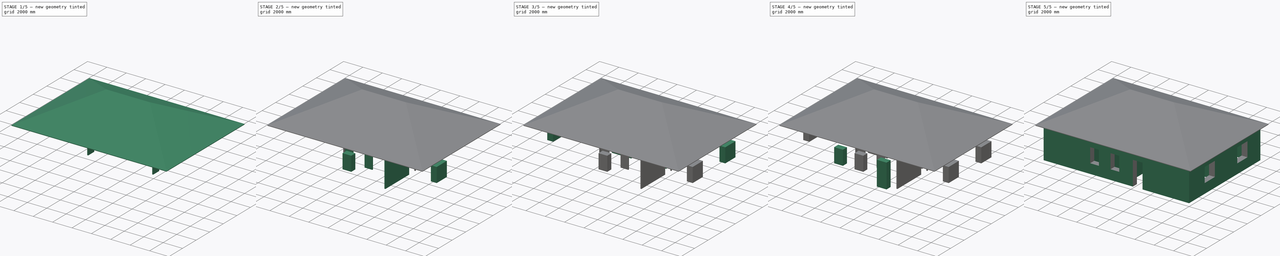
[diagram: build sequence overview — one tinted view per stage of 5, left to right]
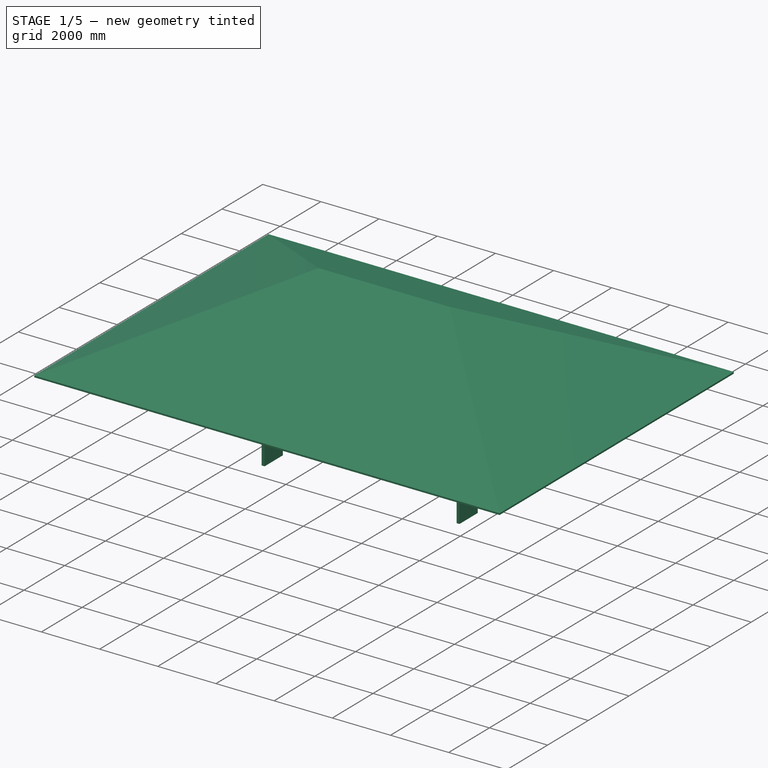
[diagram: stage 1 of 5 — iso view after this stage's code; geometry added in this stage tinted green]
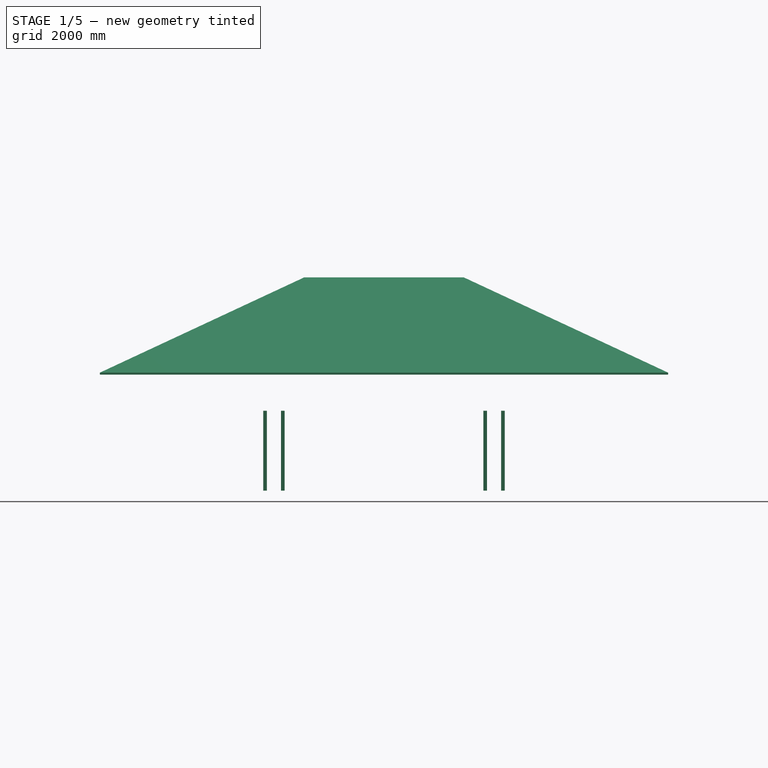
[diagram: stage 1 of 5 — front view after this stage's code; geometry added in this stage tinted green]
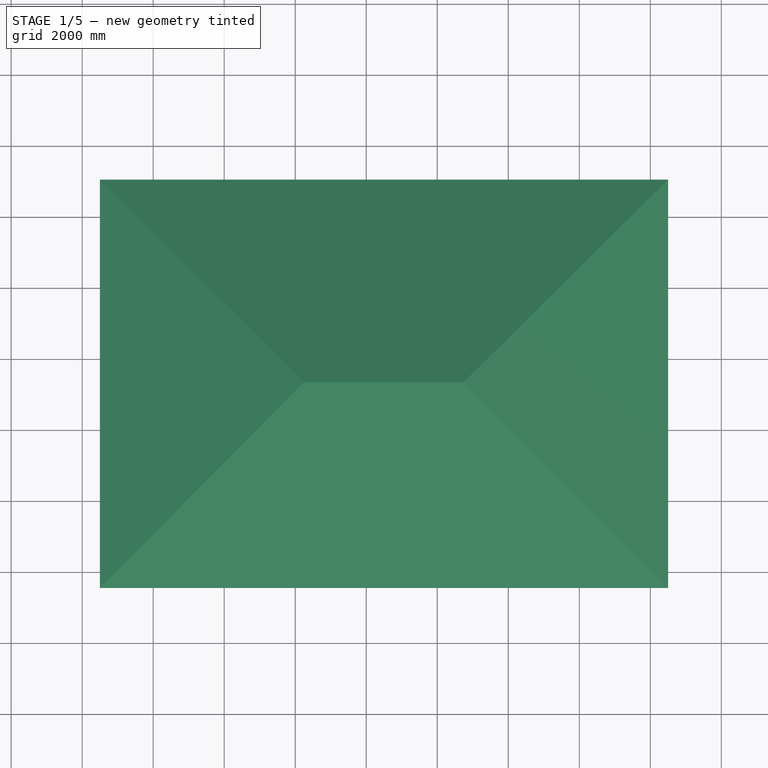
[diagram: stage 1 of 5 — top view after this stage's code; geometry added in this stage tinted green]
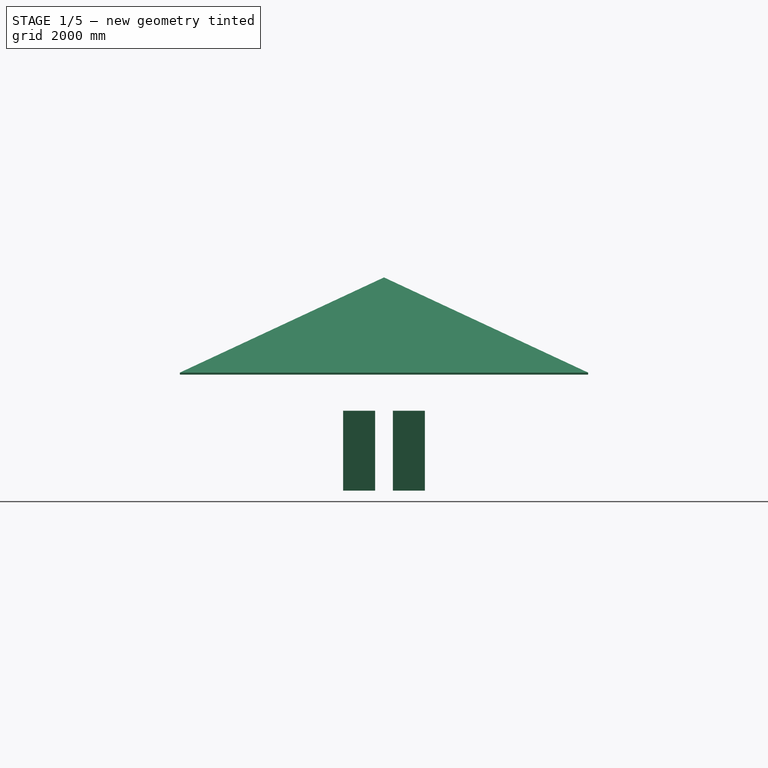
[diagram: stage 1 of 5 — right view after this stage's code; geometry added in this stage tinted green]
FCSTD DOCUMENT  (FreeCAD 0.18.4R)
Label: 3d_for_doctor77
License: All rights reserved
LicenseURL: http://en.wikipedia.org/wiki/All_rights_reserved
objects: Part::Part2DObjectPython×33, Part::FeaturePython×25, App::GeometryPython×3, App::DocumentObjectGroup×1, Sketcher::SketchObject×1, Part::Extrusion×1
note: 63 computed .brp shape members not serialized (recipe doc carries the construction recipe); baked Part::Feature solids carry a one-line shape summary decoded from their .brp

FEATURE [Part::Part2DObjectPython] Rectangle975  label="проём_075"  # Draft 2D object (typed FeaturePython)
  ChamferSize = 0
  Columns = 1
  FilletRadius = 0
  Height = 100
  Length = 900
  MakeFace = true
  Placement = pos=(-4900,1000,0) rot=(0,0,-1;1.5708rad)
  Rows = 1
FEATURE [Part::FeaturePython] Structure586  label="проём двери вн. 007"  # Arch/BIM object (typed FeaturePython)
  Base = -> Rectangle975
  FaceMaker = 0
  Height = 2250
  HorizontalArea = 90000
  IfcRole = 0
  Length = 0
  MoveWithHost = false
  Nodes = (2) [(-4225,7937.5,0),(-4225,7937.5,2250)]
  NodesOffset = 0
  Normal = (0,0,0)
  PerimeterLength = 2000
  VerticalArea = 4500000
  Width = 100
FEATURE [Part::Part2DObjectPython] Rectangle976  label="проём_076"  # Draft 2D object (typed FeaturePython)
  ChamferSize = 0
  Columns = 1
  FilletRadius = 0
  Height = 100
  Length = 900
  MakeFace = true
  Placement = pos=(-4400,2400,0) rot=(0,0,-1;1.5708rad)
  Rows = 1
FEATURE [Part::FeaturePython] Structure587  label="проём двери вн. 008"  # Arch/BIM object (typed FeaturePython)
  Base = -> Rectangle976
  FaceMaker = 0
  Height = 2250
  HorizontalArea = 90000
  IfcRole = 0
  Length = 0
  MoveWithHost = false
  Nodes = (2) [(-4225,7937.5,0),(-4225,7937.5,2250)]
  NodesOffset = 0
  Normal = (0,0,0)
  PerimeterLength = 2000
  VerticalArea = 4500000
  Width = 100
FEATURE [Part::Part2DObjectPython] Rectangle977  label="проём_077"  # Draft 2D object (typed FeaturePython)
  ChamferSize = 0
  Columns = 1
  FilletRadius = 0
  Height = 100
  Length = 900
  MakeFace = true
  Placement = pos=(1300,2400,0) rot=(0,0,-1;1.5708rad)
  Rows = 1
FEATURE [Part::FeaturePython] Structure588  label="проём двери вн. 009"  # Arch/BIM object (typed FeaturePython)
  Base = -> Rectangle977
  FaceMaker = 0
  Height = 2250
  HorizontalArea = 90000
  IfcRole = 0
  Length = 0
  MoveWithHost = false
  Nodes = (2) [(-4225,7937.5,0),(-4225,7937.5,2250)]
  NodesOffset = 0
  Normal = (0,0,0)
  PerimeterLength = 2000
  VerticalArea = 4500000
  Width = 100
FEATURE [Part::Part2DObjectPython] Rectangle978  label="проём_078"  # Draft 2D object (typed FeaturePython)
  ChamferSize = 0
  Columns = 1
  FilletRadius = 0
  Height = 100
  Length = 900
  MakeFace = true
  Placement = pos=(1800,1000,0) rot=(0,0,-1;1.5708rad)
  Rows = 1
FEATURE [Part::FeaturePython] Structure589  label="проём двери вн. 010"  # Arch/BIM object (typed FeaturePython)
  Base = -> Rectangle978
  FaceMaker = 0
  Height = 2250
  HorizontalArea = 90000
  IfcRole = 0
  Length = 0
  MoveWithHost = false
  Nodes = (2) [(-4225,7937.5,0),(-4225,7937.5,2250)]
  NodesOffset = 0
  Normal = (0,0,0)
  PerimeterLength = 2000
  VerticalArea = 4500000
  Width = 100
FEATURE [App::GeometryPython] BuildingPart001  label="Floor"  # Arch/BIM object (typed FeaturePython)
  Area = 0
  Group = -> [Wall094,Wall093,Wall092,Wall084,Wall071,Extrude,Wall095]
  Height = 0
  IfcRole = 15
  LevelOffset = 0
FEATURE [App::GeometryPython] BuildingPart  label="Building"  # Arch/BIM object (typed FeaturePython)
  Area = 0
  BuildingType = 0
  Group = -> [BuildingPart001]
  Height = 0
  IfcRole = 11
  LevelOffset = 0
FEATURE [Part::Part2DObjectPython] Wire  label="контур_кровли"  # Draft 2D object (typed FeaturePython)
  ChamferSize = 0
  Closed = true
  End = (-9000,6500,0)
  FilletRadius = 0
  Length = 51000
  MakeFace = false
  Placement = pos=(-9000,-4000,0) rot=(0,0,1;0rad)
  Points = (4) [(0,0,0),(15000,9.09495e-13,0),(15000,10500,0),(0,10500,0)]
  Start = (-9000,-4000,0)
  Subdivisions = 0
FEATURE [Part::FeaturePython] Roof  label="Крыша"  # Arch/BIM object (typed FeaturePython)
  Angles = [25,25,25,25]
  Base = -> Wire
  BorderLength = 55000
  Face = 0
  Flip = false
  Heights = [2448.12,2448.12,2448.12,2448.12]
  HorizontalArea = 1.84e+08
  IdRel = [0,0,0,0]
  IfcRole = 111
  MoveWithHost = false
  Overhang = [500,500,500,500]
  PerimeterLength = 0
  Placement = pos=(0,0,3500) rot=(0,0,1;0rad)
  RidgeLength = 38749.5
  Runs = [5250,5250,5250,5250]
  Thickness = [50,50,50,50]
  VerticalArea = 3.03429e+06
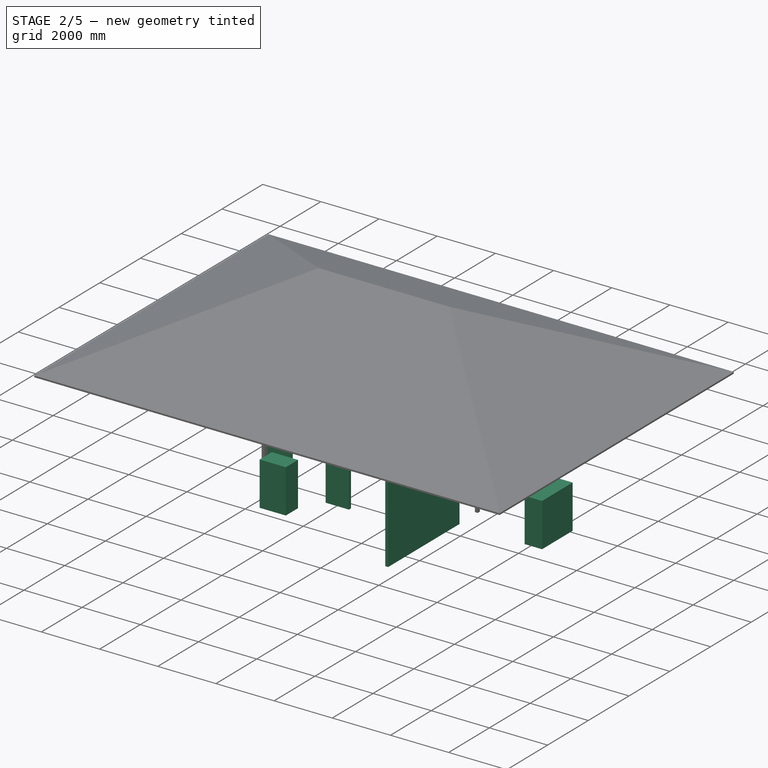
[diagram: stage 2 of 5 — iso view after this stage's code; geometry added in this stage tinted green]
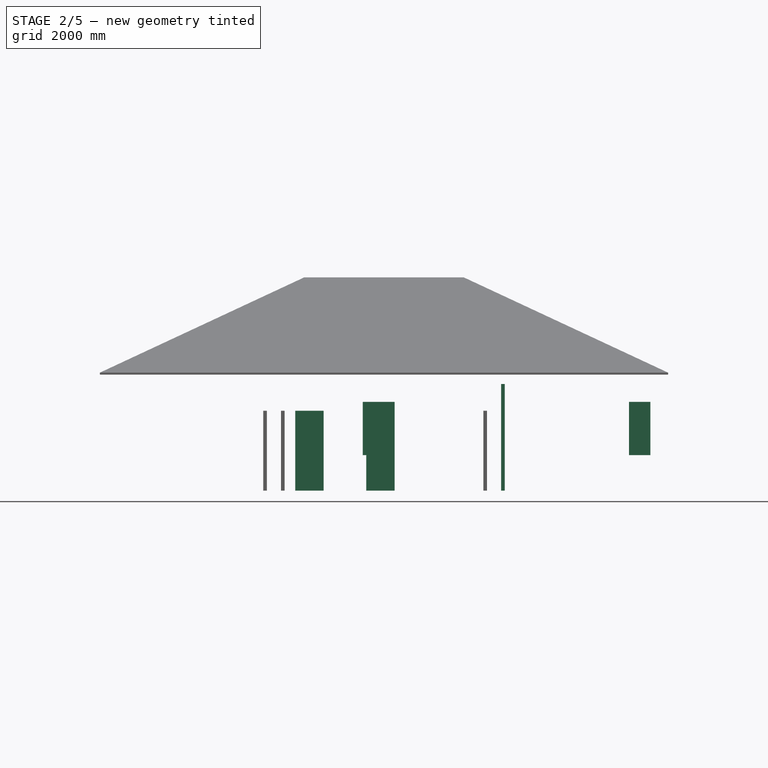
[diagram: stage 2 of 5 — front view after this stage's code; geometry added in this stage tinted green]
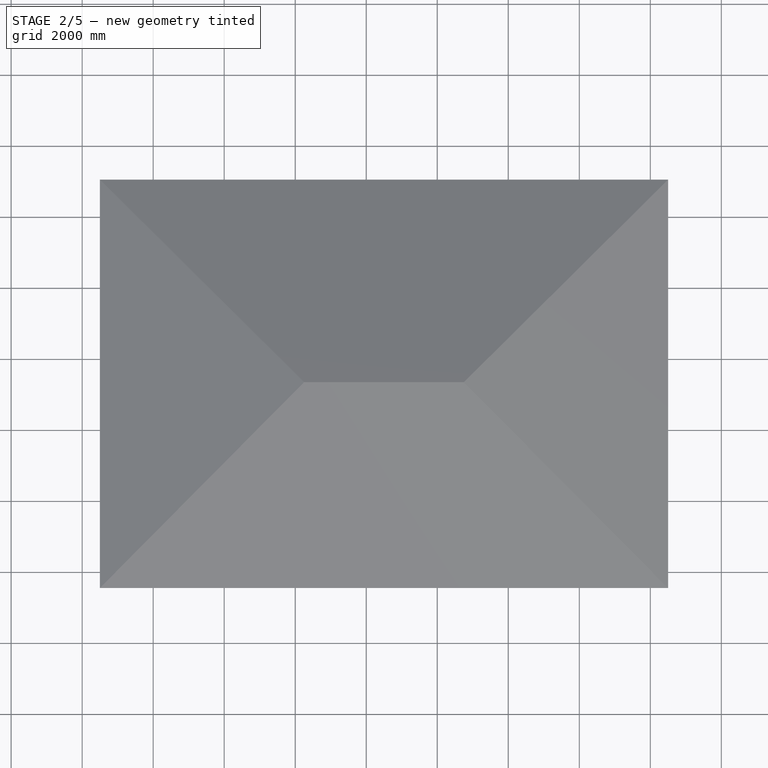
[diagram: stage 2 of 5 — top view after this stage's code; geometry added in this stage tinted green]
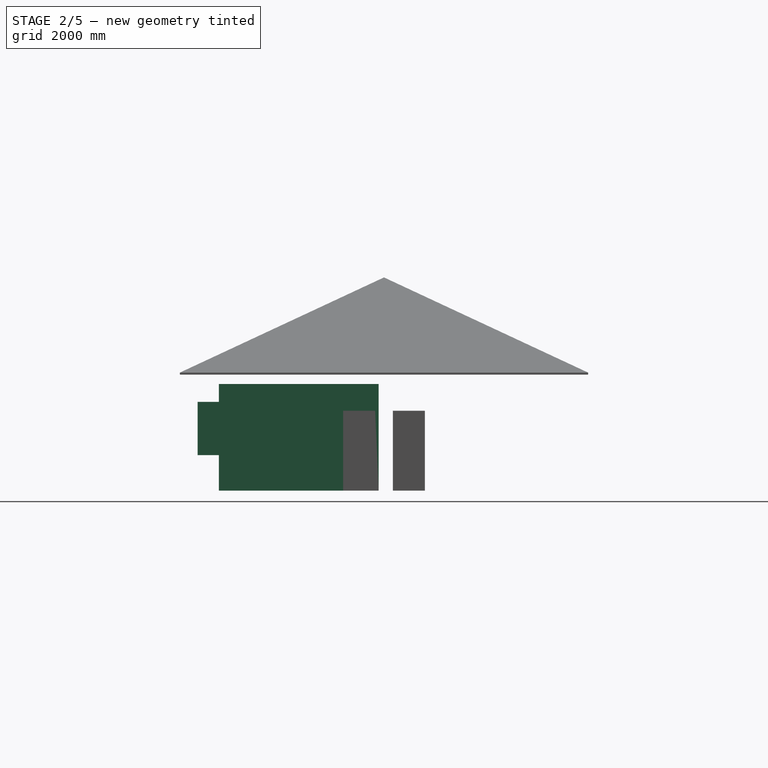
[diagram: stage 2 of 5 — right view after this stage's code; geometry added in this stage tinted green]
FEATURE [Part::Part2DObjectPython] Rectangle970  label="проём_071"  # Draft 2D object (typed FeaturePython)
  ChamferSize = 0
  Columns = 1
  FilletRadius = 0
  Height = 1500
  Length = 600
  MakeFace = true
  Placement = pos=(5400,-1700,0) rot=(0,0,1;0rad)
  Rows = 1
FEATURE [Part::FeaturePython] Structure582  label="окно_012"  # Arch/BIM object (typed FeaturePython)
  Base = -> Rectangle970
  FaceMaker = 0
  Height = 1500
  HorizontalArea = 900000
  IfcRole = 0
  Length = 0
  MoveWithHost = false
  Nodes = (2) [(-187.5,2950,0),(-187.5,2950,500)]
  NodesOffset = 0
  Normal = (0,0,0)
  PerimeterLength = 4200
  Placement = pos=(0,0,1000) rot=(0,0,1;0rad)
  VerticalArea = 6300000
  Width = 100
FEATURE [Part::Part2DObjectPython] Rectangle971  label="проём_072"  # Draft 2D object (typed FeaturePython)
  ChamferSize = 0
  Columns = 1
  FilletRadius = 0
  Height = 800
  Length = 100
  MakeFace = true
  Placement = pos=(-4000,-800,0) rot=(0,0,-1;1.5708rad)
  Rows = 1
FEATURE [Part::FeaturePython] Structure583  label="проём двери вн. 005"  # Arch/BIM object (typed FeaturePython)
  Base = -> Rectangle971
  FaceMaker = 0
  Height = 2250
  HorizontalArea = 80000
  IfcRole = 0
  Length = 0
  MoveWithHost = false
  Nodes = (2) [(-4225,7937.5,0),(-4225,7937.5,2250)]
  NodesOffset = 0
  Normal = (0,0,0)
  PerimeterLength = 1800
  VerticalArea = 4050000
  Width = 100
FEATURE [Part::Part2DObjectPython] Rectangle972  label="проём_073"  # Draft 2D object (typed FeaturePython)
  ChamferSize = 0
  Columns = 1
  FilletRadius = 0
  Height = 800
  Length = 100
  MakeFace = true
  Placement = pos=(-2000,-800,0) rot=(0,0,-1;1.5708rad)
  Rows = 1
FEATURE [Part::FeaturePython] Structure584  label="проём двери вн. 006"  # Arch/BIM object (typed FeaturePython)
  Base = -> Rectangle972
  FaceMaker = 0
  Height = 2250
  HorizontalArea = 80000
  IfcRole = 0
  Length = 0
  MoveWithHost = false
  Nodes = (2) [(-4225,7937.5,0),(-4225,7937.5,2250)]
  NodesOffset = 0
  Normal = (0,0,0)
  PerimeterLength = 1800
  VerticalArea = 4050000
  Width = 100
FEATURE [Part::Part2DObjectPython] Rectangle973  label="перегородка_006"  # Draft 2D object (typed FeaturePython)
  ChamferSize = 0
  Columns = 1
  FilletRadius = 0
  Height = 4500
  Length = 100
  MakeFace = true
  Placement = pos=(1800,-3400,0) rot=(0,0,1;0rad)
  Rows = 1
FEATURE [Part::Part2DObjectPython] Rectangle974  label="проём_074"  # Draft 2D object (typed FeaturePython)
  ChamferSize = 0
  Columns = 1
  FilletRadius = 0
  Height = 900
  Length = 600
  MakeFace = true
  Placement = pos=(-1200,-4000,0) rot=(0,0,1;1.5708rad)
  Rows = 1
FEATURE [Part::FeaturePython] Structure585  label="окно_мал_002"  # Arch/BIM object (typed FeaturePython)
  Base = -> Rectangle974
  FaceMaker = 0
  Height = 1500
  HorizontalArea = 540000
  IfcRole = 0
  Length = 0
  MoveWithHost = false
  Nodes = (2) [(1187.5,6500,0),(1187.5,6500,1500)]
  NodesOffset = 0
  Normal = (0,0,0)
  PerimeterLength = 3000
  Placement = pos=(0,0,1000) rot=(0,0,1;0rad)
  VerticalArea = 4.5e+06
  Width = 100
FEATURE [App::GeometryPython] BuildingPart002  label="проёмы"  # Arch/BIM object (typed FeaturePython)
  Area = 0
  Group = -> [Structure367,Structure366,Structure194,Structure195,Structure188,Structure549,Structure578,Structure579,Structure580,Structure581,Structure582,Structure584,Structure583,Structure585,Structure586,Structure587,Structure588,Structure589]
  Height = 0
  IfcRole = 0
  LevelOffset = 0
FEATURE [Part::FeaturePython] Wall095  label="перегородка 005"  # Arch/BIM object (typed FeaturePython)
  Align = 2
  Base = -> Rectangle973
  BlockHeight = 0
  BlockLength = 0
  CountBroken = 0
  CountEntire = 0
  Face = 0
  Height = 3000
  HorizontalArea = 450000
  IfcRole = 156
  Joint = 0
  Length = 0
  MakeBlocks = false
  MoveWithHost = false
  Normal = (0,0,0)
  OffsetFirst = 0
  OffsetSecond = 0
  PerimeterLength = 9200
  Subtractions = -> [Structure589]
  VerticalArea = 2.4e+07
  Width = 250
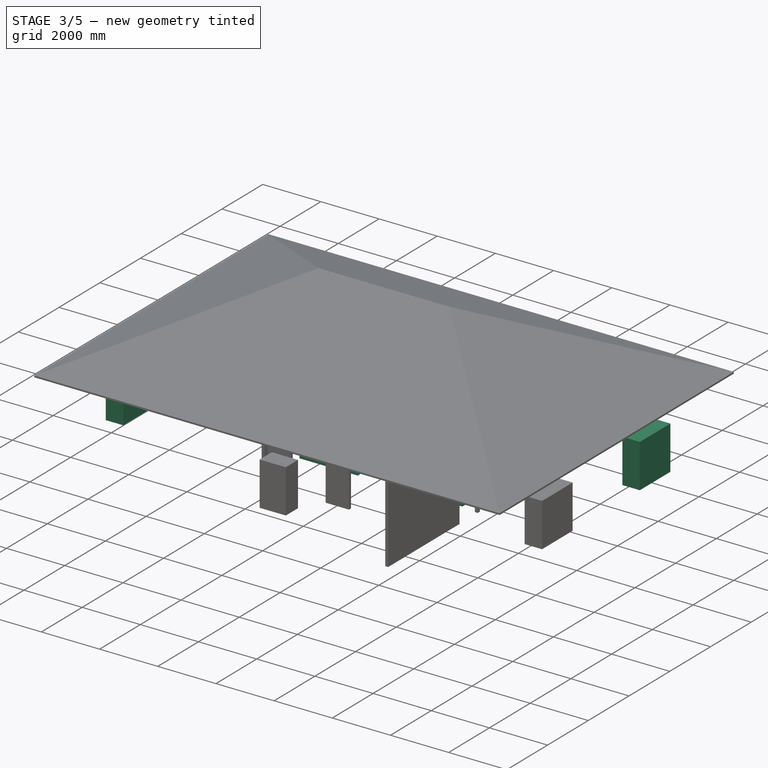
[diagram: stage 3 of 5 — iso view after this stage's code; geometry added in this stage tinted green]
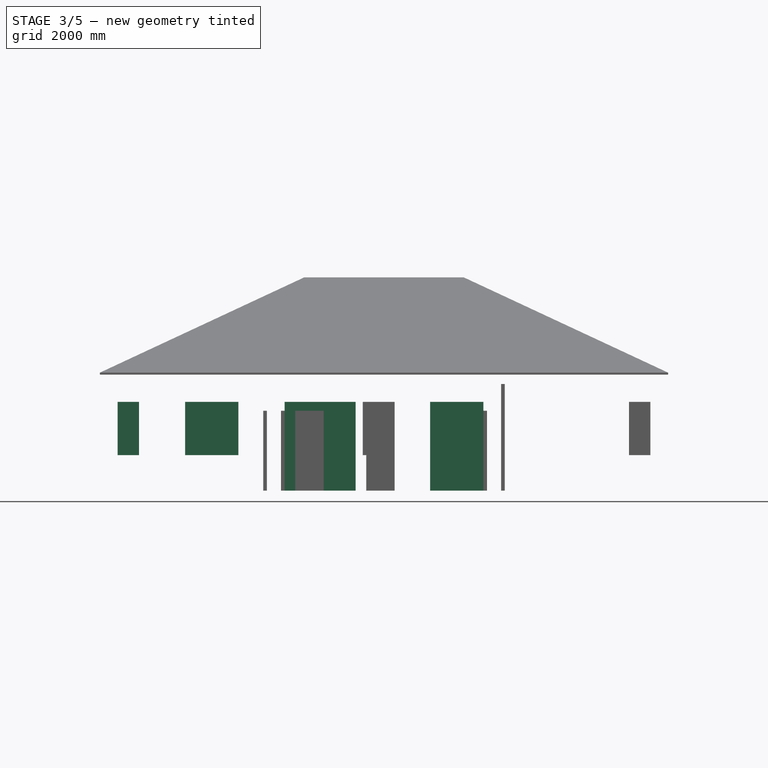
[diagram: stage 3 of 5 — front view after this stage's code; geometry added in this stage tinted green]
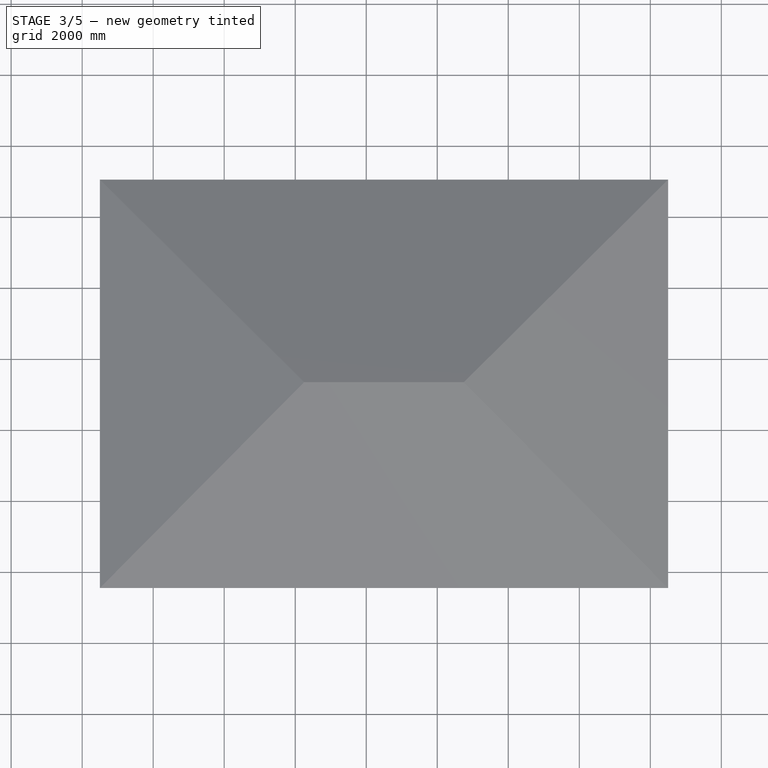
[diagram: stage 3 of 5 — top view after this stage's code; geometry added in this stage tinted green]
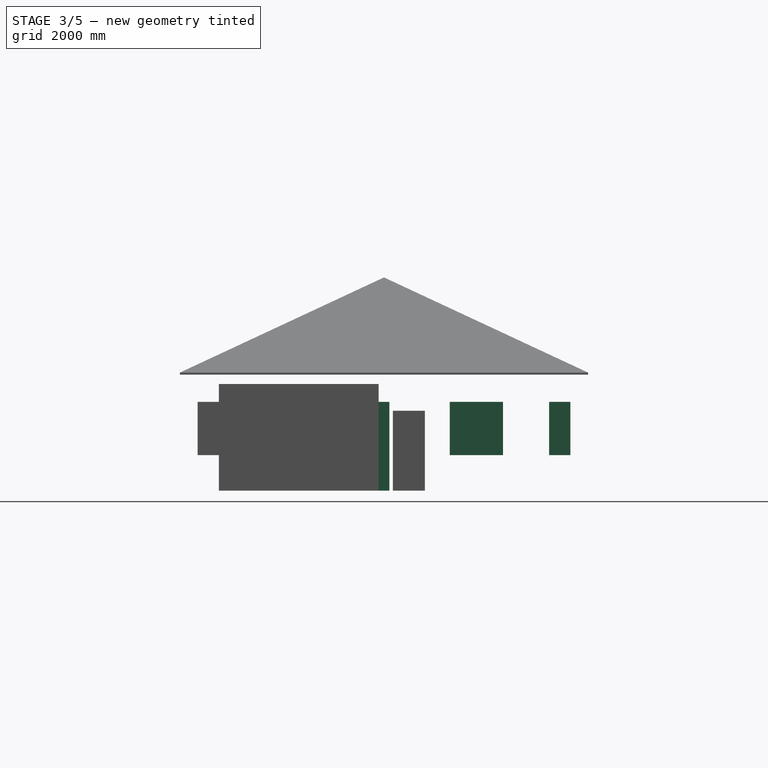
[diagram: stage 3 of 5 — right view after this stage's code; geometry added in this stage tinted green]
FEATURE [Part::FeaturePython] Structure549  label="окно_001"  # Arch/BIM object (typed FeaturePython)
  Base = -> Rectangle938
  FaceMaker = 0
  Height = 1500
  HorizontalArea = 900000
  IfcRole = 0
  Length = 0
  MoveWithHost = false
  Nodes = (2) [(-187.5,2950,0),(-187.5,2950,500)]
  NodesOffset = 0
  Normal = (0,0,0)
  PerimeterLength = 4200
  Placement = pos=(0,0,1000) rot=(0,0,1;0rad)
  VerticalArea = 6300000
  Width = 100
FEATURE [Part::Part2DObjectPython] Wire232  label="прощадь внутри стен контур"  # Draft 2D object (typed FeaturePython)
  ChamferSize = 0
  Closed = true
  End = (-8400,-3400,0)
  FilletRadius = 0
  Length = 46200
  MakeFace = false
  Placement = pos=(-1.47e-13,2400,0) rot=(0,0,1;0rad)
  Points = (4) [(-8400,3500,0),(5400,3500,0),(5400,-5800,0),(-8400,-5800,0)]
  Start = (-8400,5900,0)
  Subdivisions = 0
FEATURE [Part::Part2DObjectPython] Rectangle586  label="проём_057"  # Draft 2D object (typed FeaturePython)
  ChamferSize = 0
  Columns = 1
  FilletRadius = 0
  Height = 1500
  Length = 300
  MakeFace = true
  Placement = pos=(-200,1400,0) rot=(0,0,-1;1.5708rad)
  Rows = 1
FEATURE [Part::FeaturePython] Structure367  label="проём двери вн. 004"  # Arch/BIM object (typed FeaturePython)
  Base = -> Rectangle586
  FaceMaker = 0
  Height = 2500
  HorizontalArea = 450000
  IfcRole = 0
  Length = 0
  MoveWithHost = false
  Nodes = (2) [(-4225,7937.5,0),(-4225,7937.5,2250)]
  NodesOffset = 0
  Normal = (0,0,0)
  PerimeterLength = 3600
  VerticalArea = 9000000
  Width = 100
FEATURE [Part::Part2DObjectPython] Rectangle746  label="Стена внутр. нес. 002"  # Draft 2D object (typed FeaturePython)
  ChamferSize = 0
  Columns = 1
  FilletRadius = 0
  Height = 300
  Length = 13800
  MakeFace = true
  Placement = pos=(-8400,1100,0) rot=(0,0,1;0rad)
  Rows = 1
FEATURE [Part::Part2DObjectPython] Rectangle541  label="проём_055"  # Draft 2D object (typed FeaturePython)
  ChamferSize = 0
  Columns = 1
  FilletRadius = 0
  Height = 2000
  Length = 300
  MakeFace = true
  Placement = pos=(-4300,1400,0) rot=(0,0,-1;1.5708rad)
  Rows = 1
FEATURE [Part::FeaturePython] Structure366  label="проём двери вн. 003"  # Arch/BIM object (typed FeaturePython)
  Base = -> Rectangle541
  FaceMaker = 0
  Height = 2500
  HorizontalArea = 600000
  IfcRole = 0
  Length = 0
  MoveWithHost = false
  Nodes = (2) [(-4225,7937.5,0),(-4225,7937.5,2250)]
  NodesOffset = 0
  Normal = (0,0,0)
  PerimeterLength = 4600
  VerticalArea = 1.15e+07
  Width = 100
FEATURE [Part::Part2DObjectPython] Wire100  label="перегородка_004"  # Draft 2D object (typed FeaturePython)
  ChamferSize = 0
  Closed = true
  End = (-4800,-800,0)
  FilletRadius = 0
  Length = 27600
  MakeFace = true
  Placement = pos=(-6900,2600,0) rot=(0,0,1;0rad)
  Points = (14) [(6300,-3400,0),(6300,-6000,0),(6200,-6000,0),(6200,-3500,0),(4200,-3500,0),(4200,-6000,0),(4100,-6000,0),(4100,-3500,0),(2100,-3500,0),(2100,-6000,0),+4 more]
  Start = (-600,-800,0)
  Subdivisions = 0
FEATURE [Part::Part2DObjectPython] Rectangle749  label="перегородка_001"  # Draft 2D object (typed FeaturePython)
  ChamferSize = 0
  Columns = 1
  FilletRadius = 0
  Height = 4500
  Length = 100
  MakeFace = true
  Placement = pos=(-4400,1400,0) rot=(0,0,1;0rad)
  Rows = 1
FEATURE [Part::Part2DObjectPython] Rectangle966  label="перегородка_005"  # Draft 2D object (typed FeaturePython)
  ChamferSize = 0
  Columns = 1
  FilletRadius = 0
  Height = 4500
  Length = 100
  MakeFace = true
  Placement = pos=(1300,1400,0) rot=(0,0,1;0rad)
  Rows = 1
FEATURE [Part::Part2DObjectPython] Rectangle967  label="проём_068"  # Draft 2D object (typed FeaturePython)
  ChamferSize = 0
  Columns = 1
  FilletRadius = 0
  Height = 1500
  Length = 600
  MakeFace = true
  Placement = pos=(-9000,3100,0) rot=(0,0,1;0rad)
  Rows = 1
FEATURE [Part::FeaturePython] Structure579  label="окно_009"  # Arch/BIM object (typed FeaturePython)
  Base = -> Rectangle967
  FaceMaker = 0
  Height = 1500
  HorizontalArea = 900000
  IfcRole = 0
  Length = 0
  MoveWithHost = false
  Nodes = (2) [(-187.5,2950,0),(-187.5,2950,500)]
  NodesOffset = 0
  Normal = (0,0,0)
  PerimeterLength = 4200
  Placement = pos=(0,0,1000) rot=(0,0,1;0rad)
  VerticalArea = 6.3e+06
  Width = 100
FEATURE [Part::Part2DObjectPython] Rectangle968  label="проём_069"  # Draft 2D object (typed FeaturePython)
  ChamferSize = 0
  Columns = 1
  FilletRadius = 0
  Height = 1500
  Length = 600
  MakeFace = true
  Placement = pos=(-9000,-1700,0) rot=(0,0,1;0rad)
  Rows = 1
FEATURE [Part::FeaturePython] Structure580  label="окно_010"  # Arch/BIM object (typed FeaturePython)
  Base = -> Rectangle968
  FaceMaker = 0
  Height = 1500
  HorizontalArea = 900000
  IfcRole = 0
  Length = 0
  MoveWithHost = false
  Nodes = (2) [(-187.5,2950,0),(-187.5,2950,500)]
  NodesOffset = 0
  Normal = (0,0,0)
  PerimeterLength = 4200
  Placement = pos=(0,0,1000) rot=(0,0,1;0rad)
  VerticalArea = 6300000
  Width = 100
FEATURE [Part::Part2DObjectPython] Rectangle969  label="проём_070"  # Draft 2D object (typed FeaturePython)
  ChamferSize = 0
  Columns = 1
  FilletRadius = 0
  Height = 1500
  Length = 600
  MakeFace = true
  Placement = pos=(5400,3100,0) rot=(0,0,1;0rad)
  Rows = 1
FEATURE [Part::FeaturePython] Structure581  label="окно_011"  # Arch/BIM object (typed FeaturePython)
  Base = -> Rectangle969
  FaceMaker = 0
  Height = 1500
  HorizontalArea = 900000
  IfcRole = 0
  Length = 0
  MoveWithHost = false
  Nodes = (2) [(-187.5,2950,0),(-187.5,2950,500)]
  NodesOffset = 0
  Normal = (0,0,0)
  PerimeterLength = 4200
  Placement = pos=(0,0,1000) rot=(0,0,1;0rad)
  VerticalArea = 6.3e+06
  Width = 100
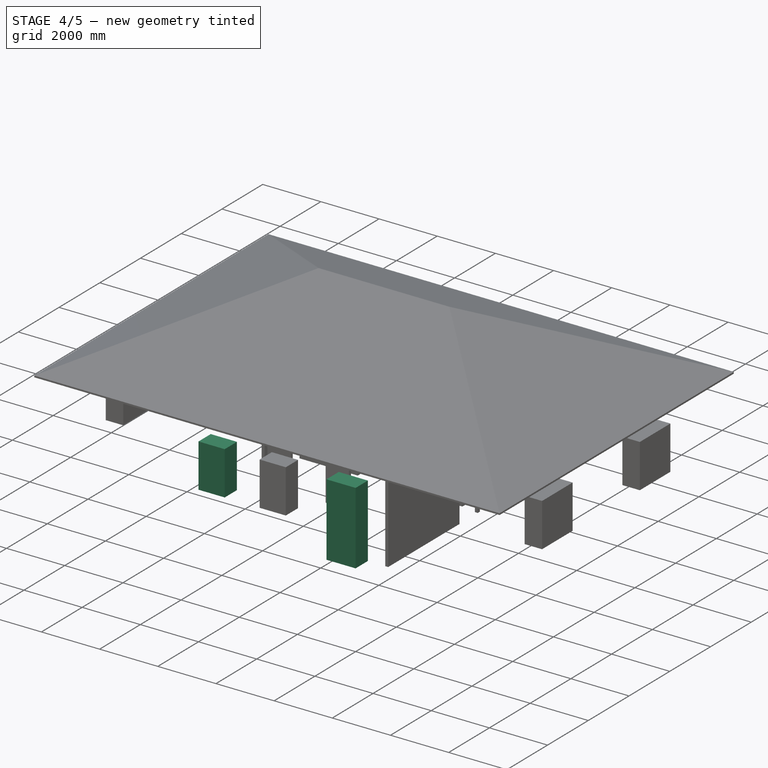
[diagram: stage 4 of 5 — iso view after this stage's code; geometry added in this stage tinted green]
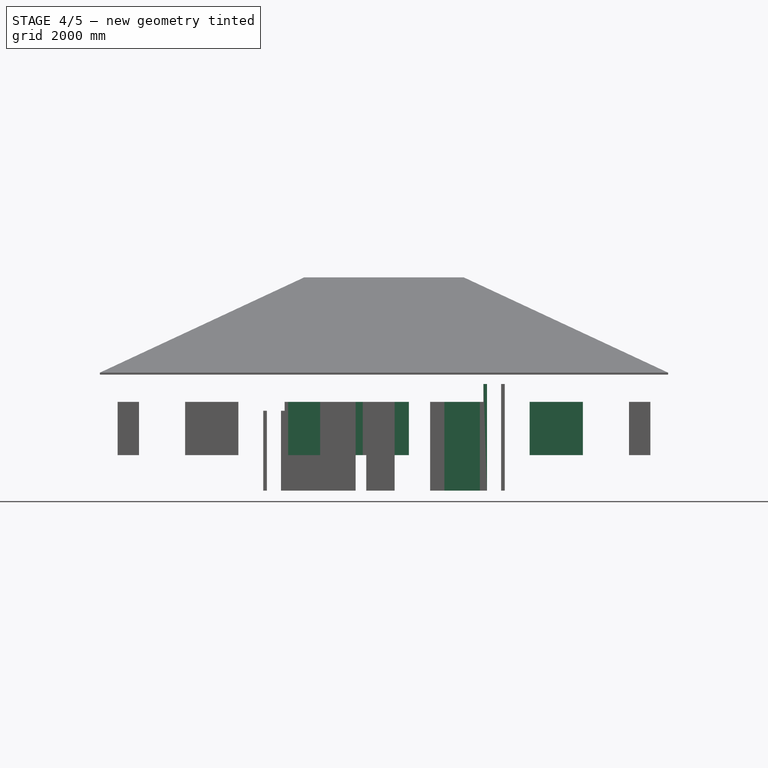
[diagram: stage 4 of 5 — front view after this stage's code; geometry added in this stage tinted green]
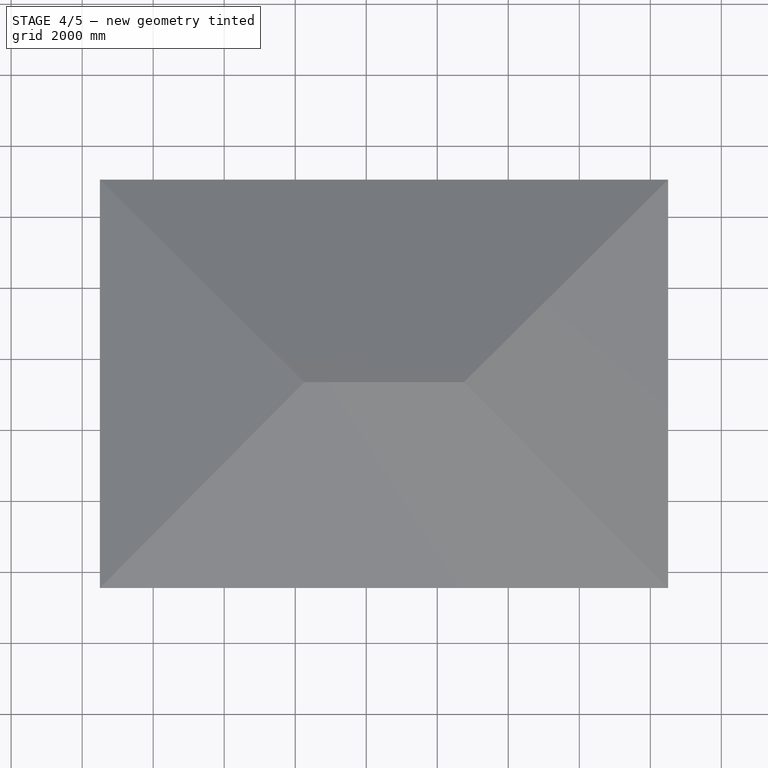
[diagram: stage 4 of 5 — top view after this stage's code; geometry added in this stage tinted green]
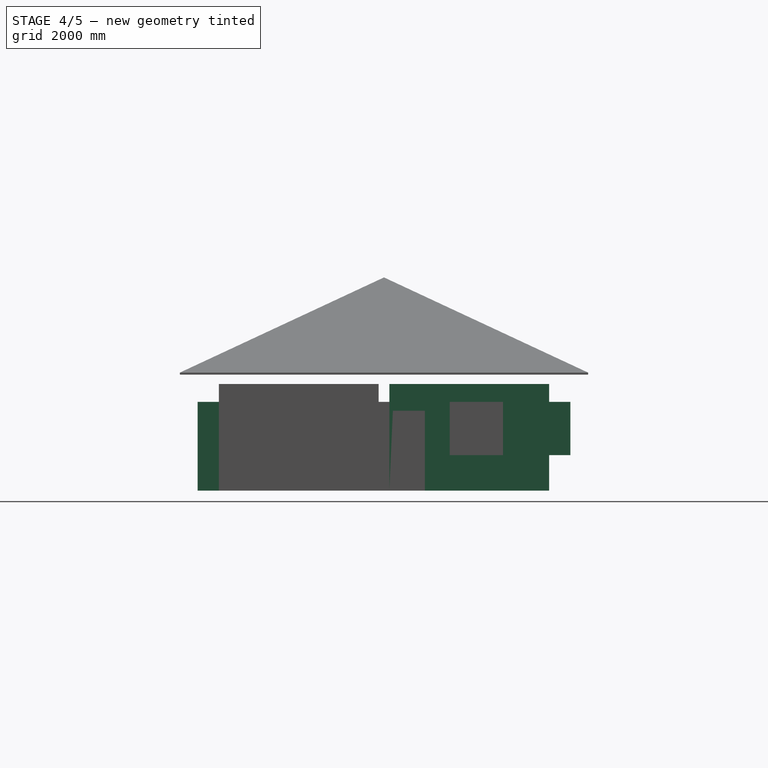
[diagram: stage 4 of 5 — right view after this stage's code; geometry added in this stage tinted green]
FEATURE [Part::Part2DObjectPython] Rectangle  label="контур"  # Draft 2D object (typed FeaturePython)
  ChamferSize = 0
  Columns = 1
  FilletRadius = 0
  Height = 10500
  Length = 15000
  MakeFace = false
  Placement = pos=(-9000,-4000,0) rot=(0,0,1;0rad)
  Rows = 1
FEATURE [Part::Part2DObjectPython] Rectangle001  # Draft 2D object (typed FeaturePython)
  ChamferSize = 0
  Columns = 1
  FilletRadius = 0
  Height = 9300
  Length = 13800
  MakeFace = false
  Placement = pos=(-8400,-3400,0) rot=(0,0,1;0rad)
  Rows = 1
FEATURE [App::DocumentObjectGroup] Construction
  Group = -> [Rectangle001]
FEATURE [Part::Part2DObjectPython] Rectangle002  # Draft 2D object (typed FeaturePython)
  ChamferSize = 0
  Columns = 1
  FilletRadius = 0
  Height = 4500
  Length = 3500
  MakeFace = false
  Placement = pos=(-8400,-3400,0) rot=(0,0,1;0rad)
  Rows = 1
FEATURE [Part::Part2DObjectPython] Rectangle003  # Draft 2D object (typed FeaturePython)
  ChamferSize = 0
  Columns = 1
  FilletRadius = 0
  Height = 2500
  Length = 2000
  MakeFace = false
  Placement = pos=(-4800,-3400,0) rot=(0,0,1;0rad)
  Rows = 1
FEATURE [Part::Part2DObjectPython] Rectangle004  # Draft 2D object (typed FeaturePython)
  ChamferSize = 0
  Columns = 1
  FilletRadius = 0
  Height = 4500
  Length = 3500
  MakeFace = false
  Placement = pos=(1900,-3400,0) rot=(0,0,1;0rad)
  Rows = 1
FEATURE [Part::Part2DObjectPython] Rectangle005  # Draft 2D object (typed FeaturePython)
  ChamferSize = 0
  Columns = 1
  FilletRadius = 0
  Height = 2500
  Length = 2000
  MakeFace = false
  Placement = pos=(-2700,-3400,0) rot=(0,0,1;0rad)
  Rows = 1
FEATURE [Part::Part2DObjectPython] Rectangle006  # Draft 2D object (typed FeaturePython)
  ChamferSize = 0
  Columns = 1
  FilletRadius = 0
  Height = 4500
  Length = 4000
  MakeFace = false
  Placement = pos=(-8400,1400,0) rot=(0,0,1;0rad)
  Rows = 1
FEATURE [Part::Part2DObjectPython] Rectangle007  # Draft 2D object (typed FeaturePython)
  ChamferSize = 0
  Columns = 1
  FilletRadius = 0
  Height = 4500
  Length = 4000
  MakeFace = false
  Placement = pos=(1400,1400,0) rot=(0,0,1;0rad)
  Rows = 1
FEATURE [Part::Part2DObjectPython] Rectangle958  label="проём_067"  # Draft 2D object (typed FeaturePython)
  ChamferSize = 0
  Columns = 1
  FilletRadius = 0
  Height = 900
  Length = 600
  MakeFace = true
  Placement = pos=(-3300,-4000,0) rot=(0,0,1;1.5708rad)
  Rows = 1
FEATURE [Part::Part2DObjectPython] Rectangle395  label="проём_045"  # Draft 2D object (typed FeaturePython)
  ChamferSize = 0
  Columns = 1
  FilletRadius = 0
  Height = 600
  Length = 1500
  MakeFace = true
  Placement = pos=(4100,6500,0) rot=(0,0,1;3.14159rad)
  Rows = 1
FEATURE [Part::FeaturePython] Structure578  label="окно_мал_001"  # Arch/BIM object (typed FeaturePython)
  Base = -> Rectangle958
  FaceMaker = 0
  Height = 1500
  HorizontalArea = 540000
  IfcRole = 0
  Length = 0
  MoveWithHost = false
  Nodes = (2) [(1187.5,6500,0),(1187.5,6500,1500)]
  NodesOffset = 0
  Normal = (0,0,0)
  PerimeterLength = 3000
  Placement = pos=(0,0,1000) rot=(0,0,1;0rad)
  VerticalArea = 4.5e+06
  Width = 100
FEATURE [Part::FeaturePython] Structure194  label="окно_008"  # Arch/BIM object (typed FeaturePython)
  Base = -> Rectangle395
  FaceMaker = 0
  Height = 1500
  HorizontalArea = 900000
  IfcRole = 0
  Length = 0
  MoveWithHost = false
  Nodes = (2) [(7937.5,-2125,0),(7937.5,-2125,1500)]
  NodesOffset = 0
  Normal = (0,0,0)
  PerimeterLength = 4200
  Placement = pos=(0,0,1000) rot=(0,0,1;0rad)
  VerticalArea = 6300000
  Width = 100
FEATURE [Part::Part2DObjectPython] Rectangle365  label="проём_двери_входной"  # Draft 2D object (typed FeaturePython)
  ChamferSize = 0
  Columns = 1
  FilletRadius = 0
  Height = 1000
  Length = 600
  MakeFace = true
  Placement = pos=(1200,-4000,0) rot=(0,0,1;1.5708rad)
  Rows = 1
FEATURE [Part::FeaturePython] Structure188  label="дверь_входная"  # Arch/BIM object (typed FeaturePython)
  Base = -> Rectangle365
  FaceMaker = 0
  Height = 2500
  HorizontalArea = 600000
  IfcRole = 0
  Length = 0
  MoveWithHost = false
  Nodes = (2) [(-4225,7937.5,0),(-4225,7937.5,2250)]
  NodesOffset = 0
  Normal = (0,0,0)
  PerimeterLength = 3200
  VerticalArea = 8000000
  Width = 100
FEATURE [Part::Part2DObjectPython] Rectangle938  label="проём_065"  # Draft 2D object (typed FeaturePython)
  ChamferSize = 0
  Columns = 1
  FilletRadius = 0
  Height = 600
  Length = 1500
  MakeFace = true
  Placement = pos=(-7100,5900,0) rot=(0,0,1;0rad)
  Rows = 1
FEATURE [Part::Part2DObjectPython] Rectangle377  label="проём_001"  # Draft 2D object (typed FeaturePython)
  ChamferSize = 0
  Columns = 1
  FilletRadius = 0
  Height = 600
  Length = 1500
  MakeFace = true
  Placement = pos=(-2300,5900,0) rot=(0,0,1;0rad)
  Rows = 1
FEATURE [Part::FeaturePython] Structure195  label="окно_007"  # Arch/BIM object (typed FeaturePython)
  Base = -> Rectangle377
  FaceMaker = 0
  Height = 1500
  HorizontalArea = 900000
  IfcRole = 0
  Length = 0
  MoveWithHost = false
  Nodes = (2) [(-187.5,2950,0),(-187.5,2950,500)]
  NodesOffset = 0
  Normal = (0,0,0)
  PerimeterLength = 4200
  Placement = pos=(0,0,1000) rot=(0,0,1;0rad)
  VerticalArea = 6300000
  Width = 100
FEATURE [Part::FeaturePython] Wall094  label="перегородка 004"  # Arch/BIM object (typed FeaturePython)
  Align = 2
  Base = -> Rectangle966
  BlockHeight = 0
  BlockLength = 0
  CountBroken = 0
  CountEntire = 0
  Face = 0
  Height = 3000
  HorizontalArea = 450000
  IfcRole = 156
  Joint = 0
  Length = 0
  MakeBlocks = false
  MoveWithHost = false
  Normal = (0,0,0)
  OffsetFirst = 0
  OffsetSecond = 0
  PerimeterLength = 9200
  Subtractions = -> [Structure588]
  VerticalArea = 2.4e+07
  Width = 250
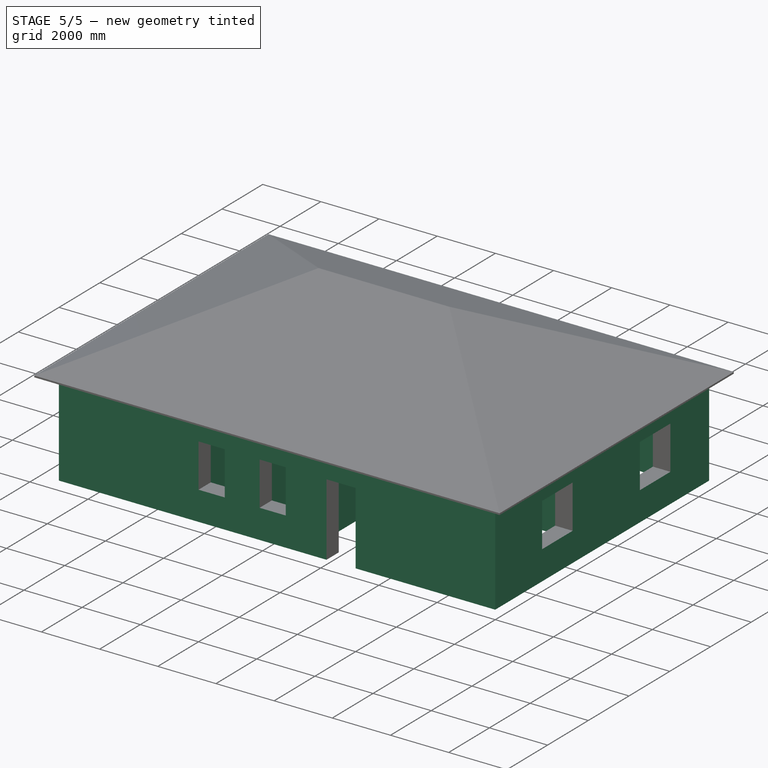
[diagram: stage 5 of 5 — iso view after this stage's code; geometry added in this stage tinted green]
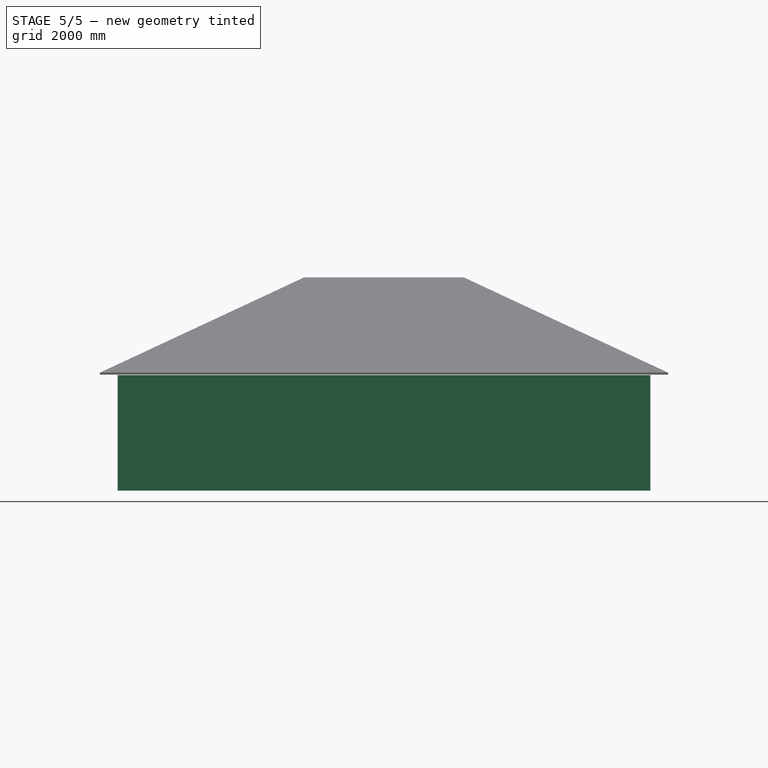
[diagram: stage 5 of 5 — front view after this stage's code; geometry added in this stage tinted green]
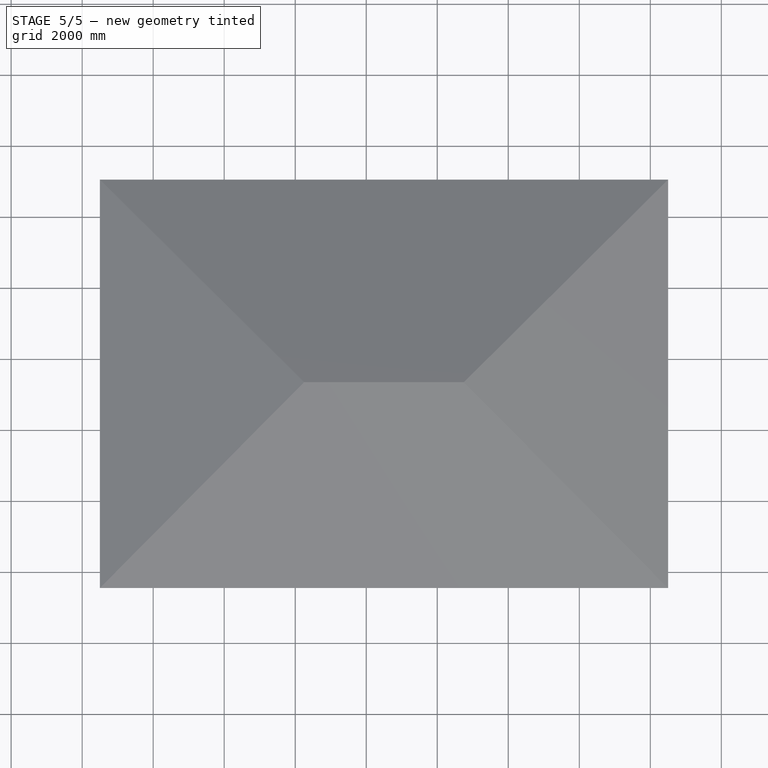
[diagram: stage 5 of 5 — top view after this stage's code; geometry added in this stage tinted green]
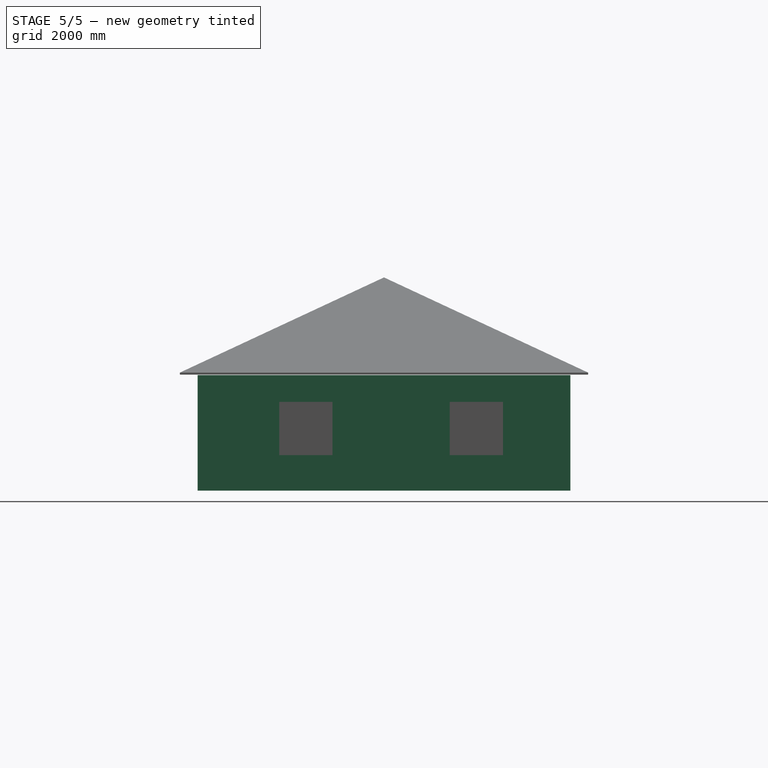
[diagram: stage 5 of 5 — right view after this stage's code; geometry added in this stage tinted green]
FEATURE [Part::FeaturePython] Wall092  label="Стена внутр. несущая 003"  # Arch/BIM object (typed FeaturePython)
  Align = 2
  Base = -> Rectangle746
  BlockHeight = 0
  BlockLength = 0
  CountBroken = 0
  CountEntire = 0
  Face = 0
  Height = 3000
  HorizontalArea = 4.14e+06
  IfcRole = 156
  Joint = 0
  Length = 0
  MakeBlocks = false
  MoveWithHost = false
  Normal = (0,0,0)
  OffsetFirst = 0
  OffsetSecond = 0
  PerimeterLength = 28200
  Subtractions = -> [Structure366,Structure367]
  VerticalArea = 7.01e+07
  Width = 250
FEATURE [Sketcher::SketchObject] Sketch  label="Вент-стояк_и_дымоход"
  MapMode = 5
  Placement = pos=(-3075,-2600,0) rot=(0,0,1;0rad)
  sketch-geometry (7):
    g0: LineSegment StartX=0 StartY=0 StartZ=0 EndX=375 EndY=0 EndZ=0
    g1: LineSegment StartX=375 StartY=0 StartZ=0 EndX=375 EndY=900 EndZ=0
    g2: LineSegment StartX=375 StartY=900 StartZ=0 EndX=0 EndY=900 EndZ=0
    g3: LineSegment StartX=0 StartY=900 StartZ=0 EndX=0 EndY=0 EndZ=0
    g4: Circle CenterX=188 CenterY=400 CenterZ=0 NormalX=0 NormalY=0 NormalZ=1 AngleXU=0 Radius=80
    g5: Circle CenterX=188 CenterY=150 CenterZ=0 NormalX=0 NormalY=0 NormalZ=1 AngleXU=0 Radius=80
    g6: Circle CenterX=188 CenterY=712 CenterZ=0 NormalX=0 NormalY=0 NormalZ=1 AngleXU=0 Radius=125
  constraints (20):
    c: Coincident(g0,g1)
    c: Coincident(g1,g2)
    c: Coincident(g2,g3)
    c: Coincident(g3,g0)
    c: Horizontal(g0)
    c: Horizontal(g2)
    c: Vertical(g1)
    c: Vertical(g3)
    c: Coincident(g0,g-1)
    c: DistanceX(g2,g2) = 375
    c: DistanceY(g1,g1) = 900
    c: Equal(g4,g5)
    c: DistanceY(g4,g2) = 500
    c: DistanceX(g2,g4) = 188
    c: DistanceY(g5,g4) = 250
    c: DistanceX(g4,g5) = 0
    c: Diameter(g6) = 250
    c: DistanceX(g6,g4) = 0
    c: Diameter(g4) = 160
    c: DistanceY(g6,g1) = 188
FEATURE [Part::Extrusion] Extrude  label="Вент-стояк_01"
  Base = -> Sketch
  Dir = (0,0,1)
  DirMode = 2
  FaceMakerClass = Part::FaceMakerBullseye
  LengthFwd = 3000
  LengthRev = 0
  Solid = true
  Symmetric = false
FEATURE [Part::FeaturePython] Wall084  label="Стена 600мм наружная"  # Arch/BIM object (typed FeaturePython)
  Align = 1
  Base = -> Wire232
  BlockHeight = 249
  BlockLength = 624
  CountBroken = 190
  CountEntire = 597
  Face = 0
  Height = 3250
  HorizontalArea = 2.922e+07
  IfcRole = 156
  Joint = 1
  Length = 46200
  MakeBlocks = false
  MoveWithHost = false
  Normal = (0,0,0)
  OffsetFirst = 249
  OffsetSecond = 0
  PerimeterLength = 37000
  Subtractions = -> [Structure194,Structure195,Structure188,Structure549,Structure578,Structure585,Structure579,Structure580,Structure581,Structure582]
  VerticalArea = 316665000
  Width = 600
FEATURE [Part::FeaturePython] Wall071  label="перегородка 002"  # Arch/BIM object (typed FeaturePython)
  Align = 2
  Base = -> Wire100
  BlockHeight = 0
  BlockLength = 0
  CountBroken = 0
  CountEntire = 0
  Face = 0
  Height = 3000
  HorizontalArea = 1370000
  IfcRole = 156
  Joint = 0
  Length = 0
  MakeBlocks = false
  MoveWithHost = false
  Normal = (0,0,0)
  OffsetFirst = 0
  OffsetSecond = 0
  PerimeterLength = 27600
  Subtractions = -> [Structure584,Structure583,Structure586]
  VerticalArea = 80100000
  Width = 200
FEATURE [Part::FeaturePython] Wall093  label="перегородка 003"  # Arch/BIM object (typed FeaturePython)
  Align = 2
  Base = -> Rectangle749
  BlockHeight = 0
  BlockLength = 0
  CountBroken = 0
  CountEntire = 0
  Face = 0
  Height = 3000
  HorizontalArea = 450000
  IfcRole = 156
  Joint = 0
  Length = 0
  MakeBlocks = false
  MoveWithHost = false
  Normal = (0,0,0)
  OffsetFirst = 0
  OffsetSecond = 0
  PerimeterLength = 9200
  Subtractions = -> [Structure587]
  VerticalArea = 2.4e+07
  Width = 250
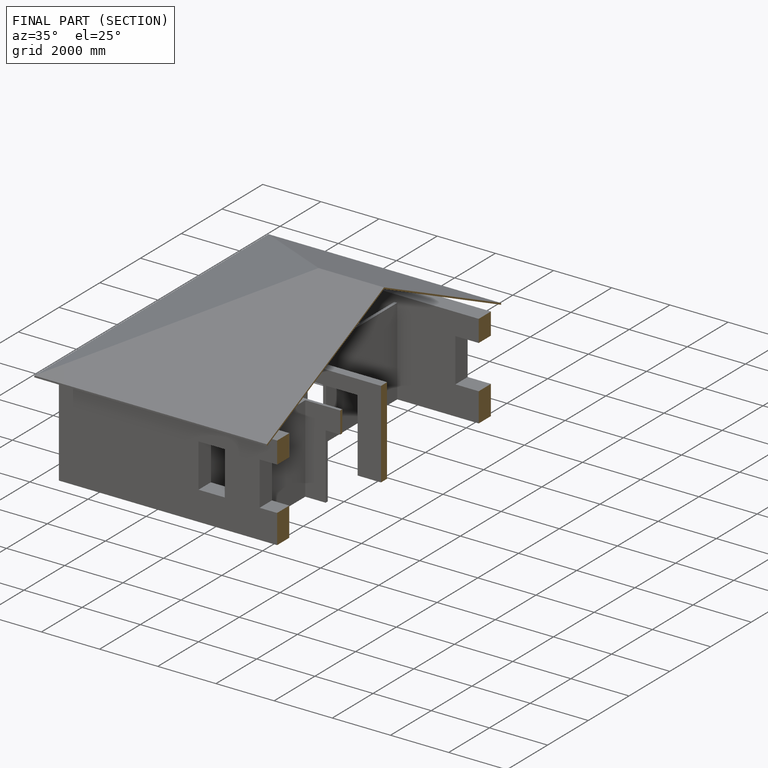
[diagram: finished part — half-section view (interior)]
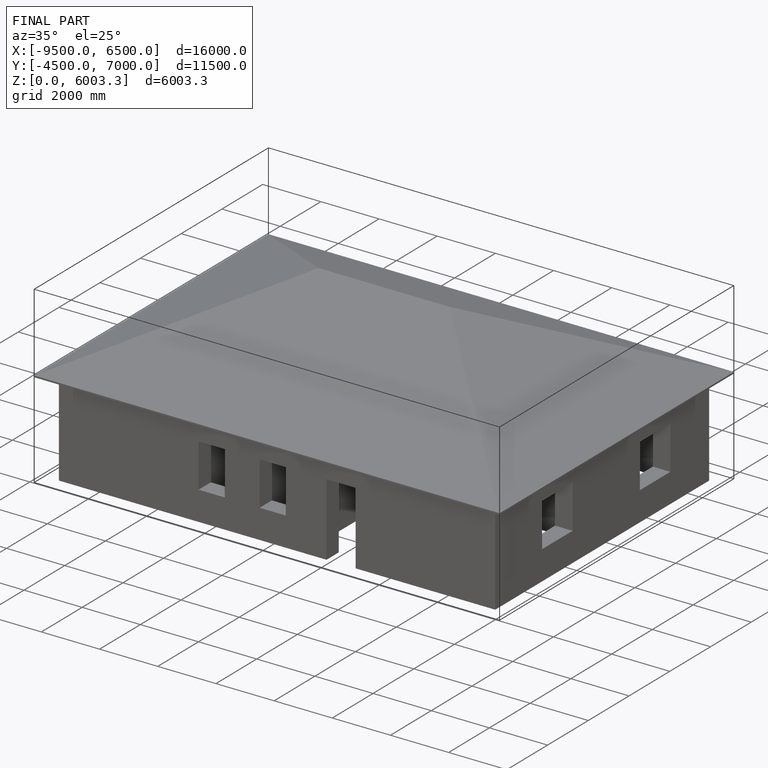
[diagram: finished part — iso view with bounding-box wireframe]
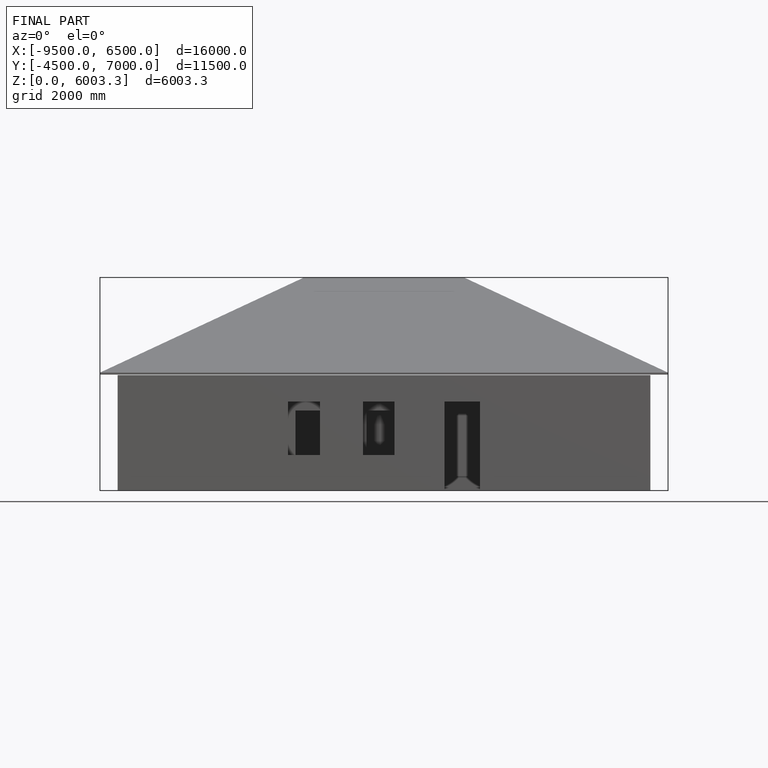
[diagram: finished part — front view with bounding-box wireframe]
